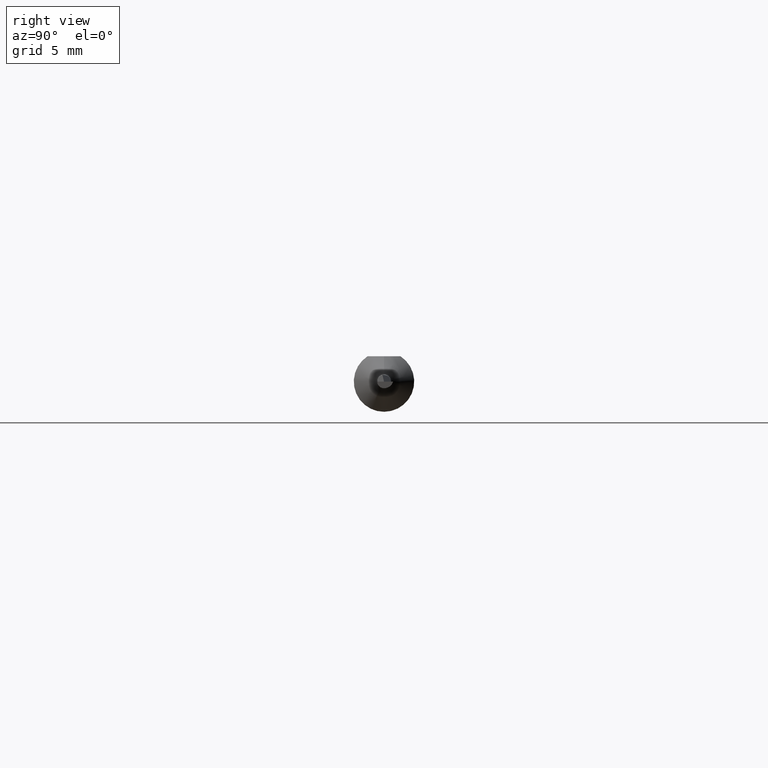
[diagram: clean part render]
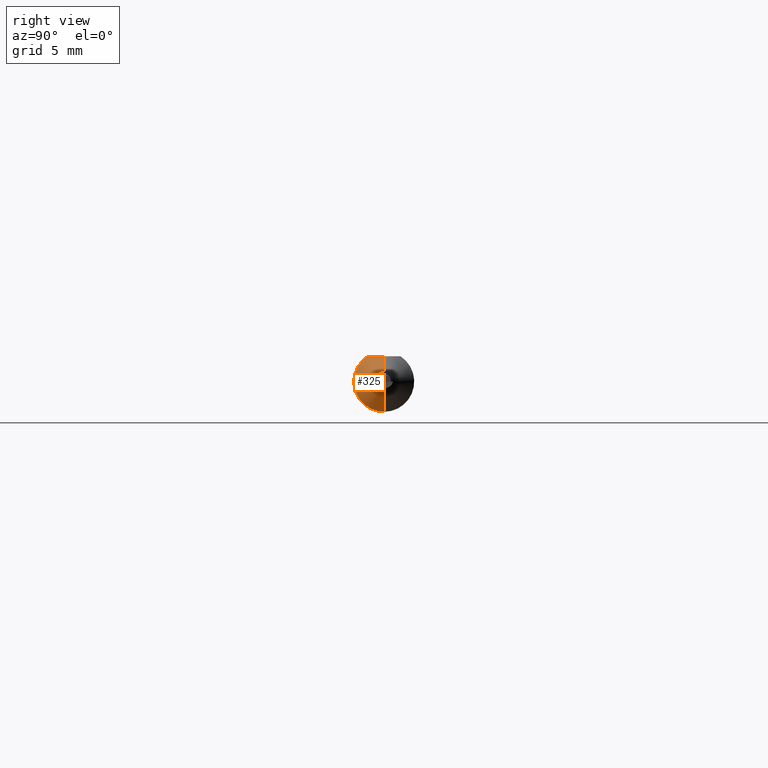
[diagram: same view with one face highlighted and labeled with its STEP entity id]
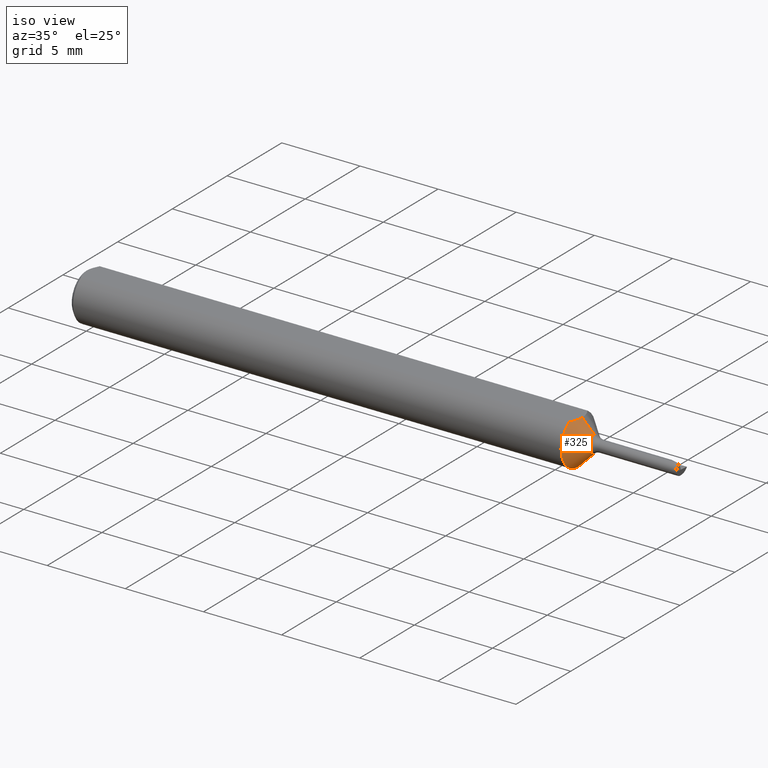
[diagram: same view with one face highlighted and labeled with its STEP entity id]
A machine part, right view. The second image highlights one B-rep face of the part: STEP entity #325.
A second angle (iso view) of the same face is appended — the face is thin or edge-on in the first view.
In plain terms, the highlighted conical surface has half-angle 45 deg.
Its self-contained STEP definition (entity closure, byte-faithful):
#8 = VERTEX_POINT ( 'NONE', #613 ) ;
#52 = CARTESIAN_POINT ( 'NONE',  ( 1.239649999999999919, 0.000000000000000000, 0.000000000000000000 ) ) ;
#73 = DIRECTION ( 'NONE',  ( -0.7071067811865507924, 0.000000000000000000, 0.7071067811865442421 ) ) ;
#85 = EDGE_CURVE ( 'NONE', #506, #357, #606, .T. ) ;
#100 = CARTESIAN_POINT ( 'NONE',  ( 1.242499562682860104, -0.02862133194396088848, 0.05235000000000002152 ) ) ;
#108 = DIRECTION ( 'NONE',  ( 0.000000000000000000, 0.000000000000000000, 1.000000000000000000 ) ) ;
#121 = CARTESIAN_POINT ( 'NONE',  ( 1.280677669529663998, 0.000000000000000000, 0.02132233047033647161 ) ) ;
#171 = CARTESIAN_POINT ( 'NONE',  ( 1.249650000000000150, -3.532469938474420466E-21, 0.05235000000000001458 ) ) ;
#195 = EDGE_LOOP ( 'NONE', ( #316, #224, #260, #377, #556 ) ) ;
#202 = CIRCLE ( 'NONE', #484, 0.06235000000000000264 ) ;
#213 = VECTOR ( 'NONE', #450, 39.37007874015748143 ) ;
#224 = ORIENTED_EDGE ( 'NONE', *, *, #85, .T. ) ;
#225 = VECTOR ( 'NONE', #73, 39.37007874015748143 ) ;
#229 = EDGE_CURVE ( 'NONE', #357, #607, #340, .T. ) ;
#255 = CARTESIAN_POINT ( 'NONE',  ( 1.249650000000000150, -3.532469938474420466E-21, 0.05235000000000001458 ) ) ;
#259 = DIRECTION ( 'NONE',  ( 0.000000000000000000, 0.000000000000000000, 1.000000000000000000 ) ) ;
#260 = ORIENTED_EDGE ( 'NONE', *, *, #229, .T. ) ;
#272 = AXIS2_PLACEMENT_3D ( 'NONE', #309, #501, #397 ) ;
#282 = EDGE_CURVE ( 'NONE', #506, #321, #363, .T. ) ;
#302 = EDGE_CURVE ( 'NONE', #607, #8, #543, .T. ) ;
#309 = CARTESIAN_POINT ( 'NONE',  ( 1.280677669529663998, 0.000000000000000000, 0.000000000000000000 ) ) ;
#315 = CARTESIAN_POINT ( 'NONE',  ( 1.244984136213919790, -0.02321572383389657393, 0.05235000000000001458 ) ) ;
#316 = ORIENTED_EDGE ( 'NONE', *, *, #282, .F. ) ;
#321 = VERTEX_POINT ( 'NONE', #408 ) ;
#325 = ADVANCED_FACE ( 'NONE', ( #589 ), #354, .T. ) ;
#327 = CARTESIAN_POINT ( 'NONE',  ( 1.280677669529663998, 0.000000000000000000, 0.000000000000000000 ) ) ;
#332 = EDGE_CURVE ( 'NONE', #321, #8, #202, .T. ) ;
#340 = LINE ( 'NONE', #121, #225 ) ;
#354 = CONICAL_SURFACE ( 'NONE', #272, 0.02132233047033647161, 0.7853981633974437271 ) ;
#356 = CARTESIAN_POINT ( 'NONE',  ( 1.248578451796299005, -0.01191733704899614575, 0.05235000000000002152 ) ) ;
#357 = VERTEX_POINT ( 'NONE', #545 ) ;
#359 = CARTESIAN_POINT ( 'NONE',  ( 1.280677669529663998, 2.611232376085963916E-18, -0.02132233047033647161 ) ) ;
#363 = LINE ( 'NONE', #359, #213 ) ;
#377 = ORIENTED_EDGE ( 'NONE', *, *, #302, .T. ) ;
#397 = DIRECTION ( 'NONE',  ( 0.000000000000000000, 0.000000000000000000, 1.000000000000000000 ) ) ;
#401 = CARTESIAN_POINT ( 'NONE',  ( 1.249650000000000150, -0.005923604052113095805, 0.05235000000000002152 ) ) ;
#408 = CARTESIAN_POINT ( 'NONE',  ( 1.239649999999999919, 7.635672792683746671E-18, -0.06235000000000000264 ) ) ;
#414 = CARTESIAN_POINT ( 'NONE',  ( 1.280677669529663998, 2.611232376085951590E-18, -0.02132233047033637099 ) ) ;
#450 = DIRECTION ( 'NONE',  ( -0.7071067811865507924, 8.659560562354893415E-17, -0.7071067811865442421 ) ) ;
#456 = AXIS2_PLACEMENT_3D ( 'NONE', #327, #515, #108 ) ;
#484 = AXIS2_PLACEMENT_3D ( 'NONE', #52, #645, #259 ) ;
#501 = DIRECTION ( 'NONE',  ( -1.000000000000000000, -0.000000000000000000, -0.000000000000000000 ) ) ;
#506 = VERTEX_POINT ( 'NONE', #414 ) ;
#515 = DIRECTION ( 'NONE',  ( -1.000000000000000000, -0.000000000000000000, -0.000000000000000000 ) ) ;
#539 = CARTESIAN_POINT ( 'NONE',  ( 1.239649999999999919, -0.03386738844375220686, 0.05235000000000000070 ) ) ;
#543 = B_SPLINE_CURVE_WITH_KNOTS ( 'NONE', 3,
 ( #255, #401, #356, #315, #100, #539 ),
 .UNSPECIFIED., .F., .F.,
 ( 4, 2, 4 ),
 ( 0.002995647966321668236, 0.003444829281114803257, 0.003894010595907938278 ),
 .UNSPECIFIED. ) ;
#545 = CARTESIAN_POINT ( 'NONE',  ( 1.280677669529663998, 0.000000000000000000, 0.02132233047033637099 ) ) ;
#556 = ORIENTED_EDGE ( 'NONE', *, *, #332, .F. ) ;
#589 = FACE_OUTER_BOUND ( 'NONE', #195, .T. ) ;
#606 = CIRCLE ( 'NONE', #456, 0.02132233047033647161 ) ;
#607 = VERTEX_POINT ( 'NONE', #171 ) ;
#613 = CARTESIAN_POINT ( 'NONE',  ( 1.239649999999999919, -0.03386738844375220686, 0.05235000000000000070 ) ) ;
#645 = DIRECTION ( 'NONE',  ( -1.000000000000000000, -0.000000000000000000, -0.000000000000000000 ) ) ;